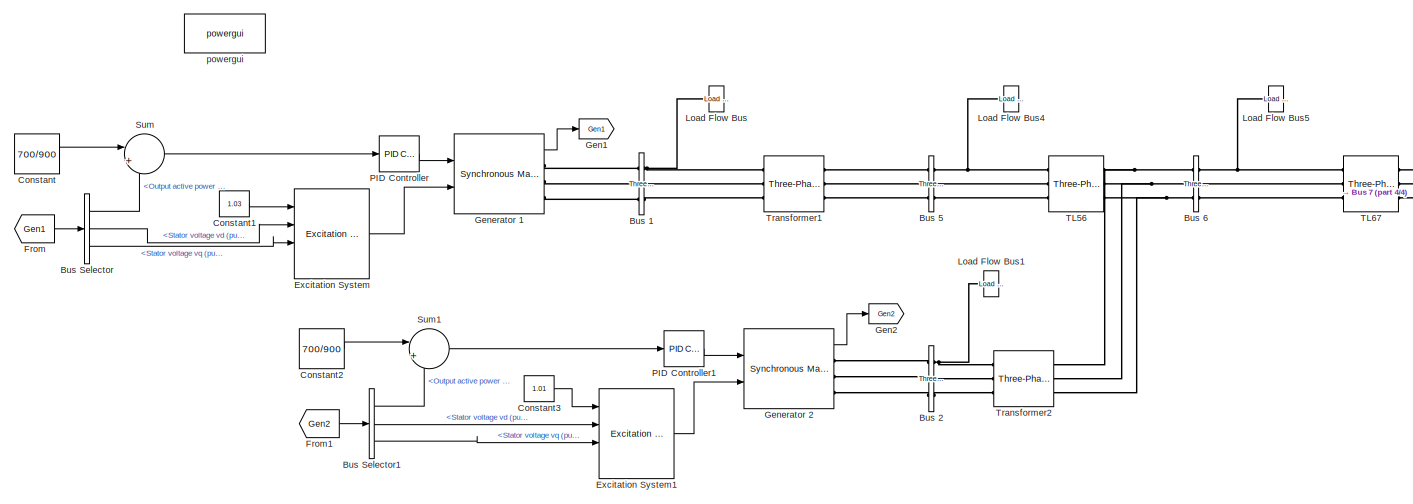
[diagram: root canvas - part 1/4, left side, full height]
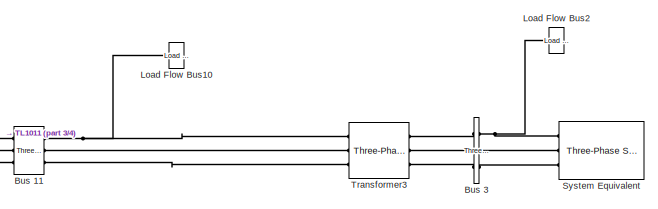
[diagram: root canvas - part 2/4, top right region]
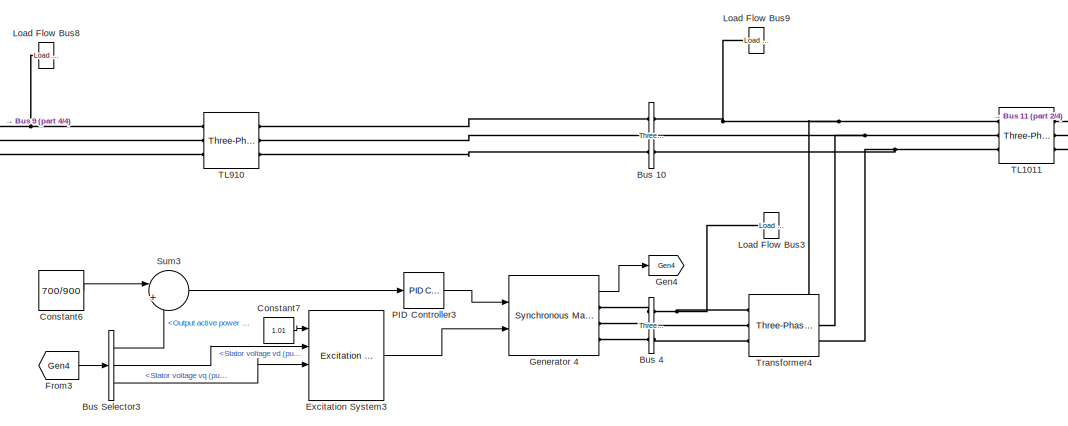
[diagram: root canvas - part 3/4, central region]
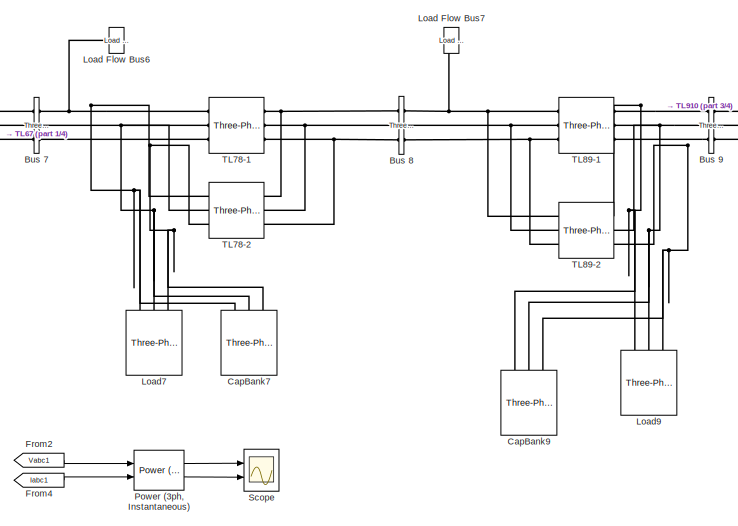
[diagram: root canvas - part 4/4, center side, full height]
MODEL slx_88a00f625fdd
KIND model
CONFIG AbsTol = auto
CONFIG EnableMultiTasking = off
CONFIG FixedStep = auto
CONFIG MaxStep = auto
CONFIG MinStep = auto
CONFIG RelTol = 1e-3
CONFIG SampleTimeConstraint = Unconstrained
CONFIG Solver = VariableStepDiscrete
CONFIG SolverName = VariableStepDiscrete
CONFIG StartTime = 0.0
CONFIG StopTime = 10.0
BLOCK [Reference]  CapBank7  REF=powerlib/Elements/Three-Phase
Parallel RLC Load
  AttributesFormatString = \n
  Ports = [0, 0, 0, 0, 0, 3]
  SourceBlock = powerlib/Elements/Three-Phase\nParallel RLC Load
  SourceProductBaseCode = PS
  SourceProductName = Simscape Power Systems
  SourceType = Three-Phase Parallel RLC Load
BLOCK [Reference]  CapBank9  REF=powerlib/Elements/Three-Phase
Parallel RLC Load
  AttributesFormatString = \n
  Ports = [0, 0, 0, 0, 0, 3]
  SourceBlock = powerlib/Elements/Three-Phase\nParallel RLC Load
  SourceProductBaseCode = PS
  SourceProductName = Simscape Power Systems
  SourceType = Three-Phase Parallel RLC Load
BLOCK [Reference]  Load7  REF=powerlib/Elements/Three-Phase
Parallel RLC Load
  AttributesFormatString = \n
  Ports = [0, 0, 0, 0, 0, 3]
  SourceBlock = powerlib/Elements/Three-Phase\nParallel RLC Load
  SourceProductBaseCode = PS
  SourceProductName = Simscape Power Systems
  SourceType = Three-Phase Parallel RLC Load
BLOCK [Reference]  Load9  REF=powerlib/Elements/Three-Phase
Parallel RLC Load
  AttributesFormatString = \n
  Ports = [0, 0, 0, 0, 0, 3]
  SourceBlock = powerlib/Elements/Three-Phase\nParallel RLC Load
  SourceProductBaseCode = PS
  SourceProductName = Simscape Power Systems
  SourceType = Three-Phase Parallel RLC Load
BLOCK [Reference]  Transformer1   REF=powerlib/Elements/Three-Phase
Transformer
(Two Windings)
  Ports = [0, 0, 0, 0, 0, 3, 3]
  SourceBlock = powerlib/Elements/Three-Phase\nTransformer\n(Two Windings)
  SourceProductBaseCode = PS
  SourceProductName = Simscape Power Systems
  SourceType = Three-Phase Transformer (Two Windings)
BLOCK [Reference]  Transformer2  REF=powerlib/Elements/Three-Phase
Transformer
(Two Windings)
  Ports = [0, 0, 0, 0, 0, 3, 3]
  SourceBlock = powerlib/Elements/Three-Phase\nTransformer\n(Two Windings)
  SourceProductBaseCode = PS
  SourceProductName = Simscape Power Systems
  SourceType = Three-Phase Transformer (Two Windings)
BLOCK [Reference]  Transformer3  REF=powerlib/Elements/Three-Phase
Transformer
(Two Windings)
  Ports = [0, 0, 0, 0, 0, 3, 3]
  SourceBlock = powerlib/Elements/Three-Phase\nTransformer\n(Two Windings)
  SourceProductBaseCode = PS
  SourceProductName = Simscape Power Systems
  SourceType = Three-Phase Transformer (Two Windings)
BLOCK [Reference]  Transformer4  REF=powerlib/Elements/Three-Phase
Transformer
(Two Windings)
  Ports = [0, 0, 0, 0, 0, 3, 3]
  SourceBlock = powerlib/Elements/Three-Phase\nTransformer\n(Two Windings)
  SourceProductBaseCode = PS
  SourceProductName = Simscape Power Systems
  SourceType = Three-Phase Transformer (Two Windings)
BLOCK [Reference] Bus 1  REF=powerlib/Measurements/Three-Phase
V-I Measurement
  Ports = [0, 0, 0, 0, 0, 3, 3]
  SourceBlock = powerlib/Measurements/Three-Phase\nV-I Measurement
  SourceProductBaseCode = PS
  SourceProductName = Simscape Power Systems
  SourceType = Three-Phase VI Measurement
BLOCK [Reference] Bus 10  REF=powerlib/Measurements/Three-Phase
V-I Measurement
  Ports = [0, 0, 0, 0, 0, 3, 3]
  SourceBlock = powerlib/Measurements/Three-Phase\nV-I Measurement
  SourceProductBaseCode = PS
  SourceProductName = Simscape Power Systems
  SourceType = Three-Phase VI Measurement
BLOCK [Reference] Bus 11  REF=powerlib/Measurements/Three-Phase
V-I Measurement
  Ports = [0, 0, 0, 0, 0, 3, 3]
  SourceBlock = powerlib/Measurements/Three-Phase\nV-I Measurement
  SourceProductBaseCode = PS
  SourceProductName = Simscape Power Systems
  SourceType = Three-Phase VI Measurement
BLOCK [Reference] Bus 2  REF=powerlib/Measurements/Three-Phase
V-I Measurement
  Ports = [0, 0, 0, 0, 0, 3, 3]
  SourceBlock = powerlib/Measurements/Three-Phase\nV-I Measurement
  SourceProductBaseCode = PS
  SourceProductName = Simscape Power Systems
  SourceType = Three-Phase VI Measurement
BLOCK [Reference] Bus 3  REF=powerlib/Measurements/Three-Phase
V-I Measurement
  Ports = [0, 0, 0, 0, 0, 3, 3]
  SourceBlock = powerlib/Measurements/Three-Phase\nV-I Measurement
  SourceProductBaseCode = PS
  SourceProductName = Simscape Power Systems
  SourceType = Three-Phase VI Measurement
BLOCK [Reference] Bus 4  REF=powerlib/Measurements/Three-Phase
V-I Measurement
  Ports = [0, 0, 0, 0, 0, 3, 3]
  SourceBlock = powerlib/Measurements/Three-Phase\nV-I Measurement
  SourceProductBaseCode = PS
  SourceProductName = Simscape Power Systems
  SourceType = Three-Phase VI Measurement
BLOCK [Reference] Bus 5  REF=powerlib/Measurements/Three-Phase
V-I Measurement
  Ports = [0, 0, 0, 0, 0, 3, 3]
  SourceBlock = powerlib/Measurements/Three-Phase\nV-I Measurement
  SourceProductBaseCode = PS
  SourceProductName = Simscape Power Systems
  SourceType = Three-Phase VI Measurement
BLOCK [Reference] Bus 6  REF=powerlib/Measurements/Three-Phase
V-I Measurement
  Ports = [0, 0, 0, 0, 0, 3, 3]
  SourceBlock = powerlib/Measurements/Three-Phase\nV-I Measurement
  SourceProductBaseCode = PS
  SourceProductName = Simscape Power Systems
  SourceType = Three-Phase VI Measurement
BLOCK [Reference] Bus 7  REF=powerlib/Measurements/Three-Phase
V-I Measurement
  Ports = [0, 0, 0, 0, 0, 3, 3]
  SourceBlock = powerlib/Measurements/Three-Phase\nV-I Measurement
  SourceProductBaseCode = PS
  SourceProductName = Simscape Power Systems
  SourceType = Three-Phase VI Measurement
BLOCK [Reference] Bus 8  REF=powerlib/Measurements/Three-Phase
V-I Measurement
  Ports = [0, 0, 0, 0, 0, 3, 3]
  SourceBlock = powerlib/Measurements/Three-Phase\nV-I Measurement
  SourceProductBaseCode = PS
  SourceProductName = Simscape Power Systems
  SourceType = Three-Phase VI Measurement
BLOCK [Reference] Bus 9  REF=powerlib/Measurements/Three-Phase
V-I Measurement
  Ports = [0, 0, 0, 0, 0, 3, 3]
  SourceBlock = powerlib/Measurements/Three-Phase\nV-I Measurement
  SourceProductBaseCode = PS
  SourceProductName = Simscape Power Systems
  SourceType = Three-Phase VI Measurement
BLOCK [BusSelector] Bus Selector
  OutputAsBus = off
  OutputSignals = Output active power   Peo (pu),dq0 components.Stator voltage  vd (pu),dq0 components.Stator voltage  vq (pu)
  Ports = [1, 3]
BLOCK [BusSelector] Bus Selector1
  OutputAsBus = off
  OutputSignals = Output active power   Peo (pu),dq0 components.Stator voltage  vd (pu),dq0 components.Stator voltage  vq (pu)
  Ports = [1, 3]
BLOCK [BusSelector] Bus Selector3
  OutputAsBus = off
  OutputSignals = Output active power   Peo (pu),dq0 components.Stator voltage  vd (pu),dq0 components.Stator voltage  vq (pu)
  Ports = [1, 3]
BLOCK [Constant] Constant
  Value = 700/900
BLOCK [Constant] Constant1
  Value = 1.03
BLOCK [Constant] Constant2
  Value = 700/900
BLOCK [Constant] Constant3
  Value = 1.01
BLOCK [Constant] Constant6
  Value = 700/900
BLOCK [Constant] Constant7
  Value = 1.01
BLOCK [Reference] Excitation System  REF=sps_avr/Excitation System
  Ports = [4, 1]
  SourceBlock = sps_avr/Excitation System
  SourceProductBaseCode = PS
  SourceProductName = Simscape Power Systems
  SourceType = Excitation System
BLOCK [Reference] Excitation System1  REF=sps_avr/Excitation System
  Ports = [4, 1]
  SourceBlock = sps_avr/Excitation System
  SourceProductBaseCode = PS
  SourceProductName = Simscape Power Systems
  SourceType = Excitation System
BLOCK [Reference] Excitation System3  REF=sps_avr/Excitation System
  Ports = [4, 1]
  SourceBlock = sps_avr/Excitation System
  SourceProductBaseCode = PS
  SourceProductName = Simscape Power Systems
  SourceType = Excitation System
BLOCK [From] From
  GotoTag = Gen1
BLOCK [From] From1
  GotoTag = Gen2
BLOCK [From] From2
  GotoTag = Vabc1
  TagVisibility = global
BLOCK [From] From3
  GotoTag = Gen4
BLOCK [From] From4
  GotoTag = Iabc1
  TagVisibility = global
BLOCK [Goto] Gen1
  GotoTag = Gen1
BLOCK [Goto] Gen2
  GotoTag = Gen2
BLOCK [Goto] Gen4
  GotoTag = Gen4
BLOCK [Reference] Generator 1   REF=powerlib/Machines/Synchronous Machine
pu Standard
  Ports = [2, 1, 0, 0, 0, 0, 3]
  SourceBlock = powerlib/Machines/Synchronous Machine\npu Standard
  SourceProductBaseCode = PS
  SourceProductName = Simscape Power Systems
  SourceType = Synchronous Machine
BLOCK [Reference] Generator 2   REF=powerlib/Machines/Synchronous Machine
pu Standard
  Ports = [2, 1, 0, 0, 0, 0, 3]
  SourceBlock = powerlib/Machines/Synchronous Machine\npu Standard
  SourceProductBaseCode = PS
  SourceProductName = Simscape Power Systems
  SourceType = Synchronous Machine
BLOCK [Reference] Generator 4  REF=powerlib/Machines/Synchronous Machine
pu Standard
  Ports = [2, 1, 0, 0, 0, 0, 3]
  SourceBlock = powerlib/Machines/Synchronous Machine\npu Standard
  SourceProductBaseCode = PS
  SourceProductName = Simscape Power Systems
  SourceType = Synchronous Machine
BLOCK [Reference] Load Flow Bus  REF=powerlib/Measurements/Load Flow Bus
  AttributesFormatString = %<ID>\n%<Vbase>V\n%<VLF>pu\n%<angleLF>deg.
  Ports = [0, 0, 0, 0, 0, 1]
  SourceBlock = powerlib/Measurements/Load Flow Bus
  SourceProductBaseCode = PS
  SourceProductName = Simscape Power Systems
  SourceType = Load Flow Bus
BLOCK [Reference] Load Flow Bus1  REF=powerlib/Measurements/Load Flow Bus
  AttributesFormatString = %<ID>\n%<Vbase>V\n%<VLF>pu\n%<angleLF>deg.
  Ports = [0, 0, 0, 0, 0, 1]
  SourceBlock = powerlib/Measurements/Load Flow Bus
  SourceProductBaseCode = PS
  SourceProductName = Simscape Power Systems
  SourceType = Load Flow Bus
BLOCK [Reference] Load Flow Bus10  REF=powerlib/Measurements/Load Flow Bus
  AttributesFormatString = %<ID>\n%<Vbase>V\n%<VLF>pu\n%<angleLF>deg.
  Ports = [0, 0, 0, 0, 0, 1]
  SourceBlock = powerlib/Measurements/Load Flow Bus
  SourceProductBaseCode = PS
  SourceProductName = Simscape Power Systems
  SourceType = Load Flow Bus
BLOCK [Reference] Load Flow Bus2  REF=powerlib/Measurements/Load Flow Bus
  AttributesFormatString = %<ID>\n%<Vbase>V\n%<VLF>pu\n%<angleLF>deg.
  Ports = [0, 0, 0, 0, 0, 1]
  SourceBlock = powerlib/Measurements/Load Flow Bus
  SourceProductBaseCode = PS
  SourceProductName = Simscape Power Systems
  SourceType = Load Flow Bus
BLOCK [Reference] Load Flow Bus3  REF=powerlib/Measurements/Load Flow Bus
  AttributesFormatString = %<ID>\n%<Vbase>V\n%<VLF>pu\n%<angleLF>deg.
  Ports = [0, 0, 0, 0, 0, 1]
  SourceBlock = powerlib/Measurements/Load Flow Bus
  SourceProductBaseCode = PS
  SourceProductName = Simscape Power Systems
  SourceType = Load Flow Bus
BLOCK [Reference] Load Flow Bus4  REF=powerlib/Measurements/Load Flow Bus
  AttributesFormatString = %<ID>\n%<Vbase>V\n%<VLF>pu\n%<angleLF>deg.
  Ports = [0, 0, 0, 0, 0, 1]
  SourceBlock = powerlib/Measurements/Load Flow Bus
  SourceProductBaseCode = PS
  SourceProductName = Simscape Power Systems
  SourceType = Load Flow Bus
BLOCK [Reference] Load Flow Bus5  REF=powerlib/Measurements/Load Flow Bus
  AttributesFormatString = %<ID>\n%<Vbase>V\n%<VLF>pu\n%<angleLF>deg.
  Ports = [0, 0, 0, 0, 0, 1]
  SourceBlock = powerlib/Measurements/Load Flow Bus
  SourceProductBaseCode = PS
  SourceProductName = Simscape Power Systems
  SourceType = Load Flow Bus
BLOCK [Reference] Load Flow Bus6  REF=powerlib/Measurements/Load Flow Bus
  AttributesFormatString = %<ID>\n%<Vbase>V\n%<VLF>pu\n%<angleLF>deg.
  Ports = [0, 0, 0, 0, 0, 1]
  SourceBlock = powerlib/Measurements/Load Flow Bus
  SourceProductBaseCode = PS
  SourceProductName = Simscape Power Systems
  SourceType = Load Flow Bus
BLOCK [Reference] Load Flow Bus7  REF=powerlib/Measurements/Load Flow Bus
  AttributesFormatString = %<ID>\n%<Vbase>V\n%<VLF>pu\n%<angleLF>deg.
  Ports = [0, 0, 0, 0, 0, 1]
  SourceBlock = powerlib/Measurements/Load Flow Bus
  SourceProductBaseCode = PS
  SourceProductName = Simscape Power Systems
  SourceType = Load Flow Bus
BLOCK [Reference] Load Flow Bus8  REF=powerlib/Measurements/Load Flow Bus
  AttributesFormatString = %<ID>\n%<Vbase>V\n%<VLF>pu\n%<angleLF>deg.
  Ports = [0, 0, 0, 0, 0, 1]
  SourceBlock = powerlib/Measurements/Load Flow Bus
  SourceProductBaseCode = PS
  SourceProductName = Simscape Power Systems
  SourceType = Load Flow Bus
BLOCK [Reference] Load Flow Bus9  REF=powerlib/Measurements/Load Flow Bus
  AttributesFormatString = %<ID>\n%<Vbase>V\n%<VLF>pu\n%<angleLF>deg.
  Ports = [0, 0, 0, 0, 0, 1]
  SourceBlock = powerlib/Measurements/Load Flow Bus
  SourceProductBaseCode = PS
  SourceProductName = Simscape Power Systems
  SourceType = Load Flow Bus
BLOCK [Reference] PID Controller  REF=simulink/Continuous/PID Controller
  Ports = [1, 1]
  SourceBlock = simulink/Continuous/PID Controller
  SourceProductBaseCode = SL
  SourceProductName = Simulink
  SourceType = PID 1dof
BLOCK [Reference] PID Controller1  REF=simulink/Continuous/PID Controller
  Ports = [1, 1]
  SourceBlock = simulink/Continuous/PID Controller
  SourceProductBaseCode = SL
  SourceProductName = Simulink
  SourceType = PID 1dof
BLOCK [Reference] PID Controller3  REF=simulink/Continuous/PID Controller
  Ports = [1, 1]
  SourceBlock = simulink/Continuous/PID Controller
  SourceProductBaseCode = SL
  SourceProductName = Simulink
  SourceType = PID 1dof
BLOCK [Reference] Power (3ph, Instantaneous)  REF=powerlib_meascontrol/Measurements/Power
(3ph, Instantaneous)
  Ports = [2, 2]
  SourceBlock = powerlib_meascontrol/Measurements/Power\n(3ph, Instantaneous)
  SourceProductBaseCode = PS
  SourceProductName = Simscape Power Systems
  SourceType = Power (3ph, Instantaneous)
BLOCK [Scope] Scope
  Floating = off
  NumInputPorts = 2
  Ports = [2]
  ScopeSpecificationString = Simulink.scopes.TimeScopeBlockCfg('CurrentConfiguration', extmgr.ConfigurationSet(extmgr.Configuration('Core','General UI',true),extmgr.Configuration('Core','Source UI',true),extmgr.Configuration('Sources','WiredSimulink',true),extmgr.Configuration('Visuals','Time Domain',true,'SerializedDisplays',{struct('MinYLimReal','-10','MaxYLimReal','10','YLabelReal','','MinYLimMag','0','MaxYLimMag','10','Le...<+1625ch>
BLOCK [Sum] Sum
  IconShape = round
  InputSameDT = off
  Inputs = |+-
  OutDataTypeStr = Inherit: Inherit via internal rule
  Ports = [2, 1]
  SaturateOnIntegerOverflow = off
BLOCK [Sum] Sum1
  IconShape = round
  InputSameDT = off
  Inputs = |+-
  OutDataTypeStr = Inherit: Inherit via internal rule
  Ports = [2, 1]
  SaturateOnIntegerOverflow = off
BLOCK [Sum] Sum3
  IconShape = round
  InputSameDT = off
  Inputs = |+-
  OutDataTypeStr = Inherit: Inherit via internal rule
  Ports = [2, 1]
  SaturateOnIntegerOverflow = off
BLOCK [Reference] System Equivalent  REF=powerlib/Electrical
Sources/Three-Phase Source
  Ports = [0, 0, 0, 0, 0, 0, 3]
  SourceBlock = powerlib/Electrical\nSources/Three-Phase Source
  SourceProductBaseCode = PS
  SourceProductName = Simscape Power Systems
  SourceType = Three-Phase Source
BLOCK [Reference] TL1011  REF=powerlib/Elements/Three-Phase
Series RLC Branch
  AttributesFormatString = \n
  Ports = [0, 0, 0, 0, 0, 3, 3]
  SourceBlock = powerlib/Elements/Three-Phase\nSeries RLC Branch
  SourceProductBaseCode = PS
  SourceProductName = Simscape Power Systems
  SourceType = Three-Phase Series RLC Branch
BLOCK [Reference] TL56   REF=powerlib/Elements/Three-Phase
Series RLC Branch
  AttributesFormatString = \n
  Ports = [0, 0, 0, 0, 0, 3, 3]
  SourceBlock = powerlib/Elements/Three-Phase\nSeries RLC Branch
  SourceProductBaseCode = PS
  SourceProductName = Simscape Power Systems
  SourceType = Three-Phase Series RLC Branch
BLOCK [Reference] TL67  REF=powerlib/Elements/Three-Phase
Series RLC Branch
  AttributesFormatString = \n
  Ports = [0, 0, 0, 0, 0, 3, 3]
  SourceBlock = powerlib/Elements/Three-Phase\nSeries RLC Branch
  SourceProductBaseCode = PS
  SourceProductName = Simscape Power Systems
  SourceType = Three-Phase Series RLC Branch
BLOCK [Reference] TL78-1  REF=powerlib/Elements/Three-Phase
Series RLC Branch
  AttributesFormatString = \n
  Ports = [0, 0, 0, 0, 0, 3, 3]
  SourceBlock = powerlib/Elements/Three-Phase\nSeries RLC Branch
  SourceProductBaseCode = PS
  SourceProductName = Simscape Power Systems
  SourceType = Three-Phase Series RLC Branch
BLOCK [Reference] TL78-2  REF=powerlib/Elements/Three-Phase
Series RLC Branch
  AttributesFormatString = \n
  Ports = [0, 0, 0, 0, 0, 3, 3]
  SourceBlock = powerlib/Elements/Three-Phase\nSeries RLC Branch
  SourceProductBaseCode = PS
  SourceProductName = Simscape Power Systems
  SourceType = Three-Phase Series RLC Branch
BLOCK [Reference] TL89-1  REF=powerlib/Elements/Three-Phase
Series RLC Branch
  AttributesFormatString = \n
  Ports = [0, 0, 0, 0, 0, 3, 3]
  SourceBlock = powerlib/Elements/Three-Phase\nSeries RLC Branch
  SourceProductBaseCode = PS
  SourceProductName = Simscape Power Systems
  SourceType = Three-Phase Series RLC Branch
BLOCK [Reference] TL89-2  REF=powerlib/Elements/Three-Phase
Series RLC Branch
  AttributesFormatString = \n
  Ports = [0, 0, 0, 0, 0, 3, 3]
  SourceBlock = powerlib/Elements/Three-Phase\nSeries RLC Branch
  SourceProductBaseCode = PS
  SourceProductName = Simscape Power Systems
  SourceType = Three-Phase Series RLC Branch
BLOCK [Reference] TL910  REF=powerlib/Elements/Three-Phase
Series RLC Branch
  AttributesFormatString = \n
  Ports = [0, 0, 0, 0, 0, 3, 3]
  SourceBlock = powerlib/Elements/Three-Phase\nSeries RLC Branch
  SourceProductBaseCode = PS
  SourceProductName = Simscape Power Systems
  SourceType = Three-Phase Series RLC Branch
BLOCK [Reference] powergui  REF=powerlib/powergui
  Ports = []
  Priority = 1
  SourceBlock = powerlib/powergui
  SourceProductBaseCode = PS
  SourceProductName = Simscape Power Systems
  SourceType = PSB option menu block
LINE Bus Selector1:1 -> Sum1:2
LINE Bus Selector1:2 -> Excitation System1:2
LINE Bus Selector1:3 -> Excitation System1:3
LINE Bus Selector3:1 -> Sum3:2
LINE Bus Selector3:2 -> Excitation System3:2
LINE Bus Selector3:3 -> Excitation System3:3
LINE Bus Selector:1 -> Sum:2
LINE Bus Selector:2 -> Excitation System:2
LINE Bus Selector:3 -> Excitation System:3
LINE Constant1:1 -> Excitation System:1
LINE Constant2:1 -> Sum1:1
LINE Constant3:1 -> Excitation System1:1
LINE Constant6:1 -> Sum3:1
LINE Constant7:1 -> Excitation System3:1
LINE Constant:1 -> Sum:1
LINE Excitation System1:1 -> Generator 2 :2
LINE Excitation System3:1 -> Generator 4:2
LINE Excitation System:1 -> Generator 1 :2
LINE From1:1 -> Bus Selector1:1
LINE From2:1 -> Power (3ph, Instantaneous):1
LINE From3:1 -> Bus Selector3:1
LINE From4:1 -> Power (3ph, Instantaneous):2
LINE From:1 -> Bus Selector:1
LINE Generator 1 :1 -> Gen1:1
LINE Generator 2 :1 -> Gen2:1
LINE Generator 4:1 -> Gen4:1
LINE PID Controller1:1 -> Generator 2 :1
LINE PID Controller3:1 -> Generator 4:1
LINE PID Controller:1 -> Generator 1 :1
LINE Power (3ph, Instantaneous):1 -> Scope:1
LINE Power (3ph, Instantaneous):2 -> Scope:2
LINE Sum1:1 -> PID Controller1:1
LINE Sum3:1 -> PID Controller3:1
LINE Sum:1 -> PID Controller:1
PNET net1:  CapBank7:LConn1 --  Load7:LConn1 -- Bus 7:RConn1 -- Load Flow Bus6:LConn1 -- TL78-1:LConn1 -- TL78-2:LConn1
PNET net2:  CapBank7:LConn2 --  Load7:LConn2 -- Bus 7:RConn2 -- TL78-1:LConn2 -- TL78-2:LConn2
PNET net3:  CapBank7:LConn3 --  Load7:LConn3 -- Bus 7:RConn3 -- TL78-1:LConn3 -- TL78-2:LConn3
PNET net4:  CapBank9:LConn1 --  Load9:LConn1 -- Bus 9:LConn1 -- TL89-1:RConn1 -- TL89-2:RConn1
PNET net5:  CapBank9:LConn2 --  Load9:LConn2 -- Bus 9:LConn2 -- TL89-1:RConn2 -- TL89-2:RConn2
PNET net6:  CapBank9:LConn3 --  Load9:LConn3 -- Bus 9:LConn3 -- TL89-1:RConn3 -- TL89-2:RConn3
PNET net7:  Transformer1 :LConn1 -- Bus 1:RConn1 -- Load Flow Bus:LConn1
PLINE  Transformer1 :LConn2 -- Bus 1:RConn2
PLINE  Transformer1 :LConn3 -- Bus 1:RConn3
PLINE  Transformer1 :RConn1 -- Bus 5:LConn1
PLINE  Transformer1 :RConn2 -- Bus 5:LConn2
PLINE  Transformer1 :RConn3 -- Bus 5:LConn3
PNET net8:  Transformer2:LConn1 -- Bus 2:RConn1 -- Load Flow Bus1:LConn1
PLINE  Transformer2:LConn2 -- Bus 2:RConn2
PLINE  Transformer2:LConn3 -- Bus 2:RConn3
PNET net9:  Transformer2:RConn1 -- Bus 6:LConn1 -- TL56 :RConn1
PNET net10:  Transformer2:RConn2 -- Bus 6:LConn2 -- TL56 :RConn2
PNET net11:  Transformer2:RConn3 -- Bus 6:LConn3 -- TL56 :RConn3
PLINE  Transformer3:LConn1 -- Bus 3:LConn1
PLINE  Transformer3:LConn2 -- Bus 3:LConn2
PLINE  Transformer3:LConn3 -- Bus 3:LConn3
PNET net12:  Transformer3:RConn1 -- Bus 11:RConn1 -- Load Flow Bus10:LConn1
PLINE  Transformer3:RConn2 -- Bus 11:RConn2
PLINE  Transformer3:RConn3 -- Bus 11:RConn3
PNET net13:  Transformer4:LConn1 -- Bus 4:RConn1 -- Load Flow Bus3:LConn1
PLINE  Transformer4:LConn2 -- Bus 4:RConn2
PLINE  Transformer4:LConn3 -- Bus 4:RConn3
PNET net14:  Transformer4:RConn1 -- Bus 10:RConn1 -- Load Flow Bus9:LConn1 -- TL1011:LConn1
PNET net15:  Transformer4:RConn2 -- Bus 10:RConn2 -- TL1011:LConn2
PNET net16:  Transformer4:RConn3 -- Bus 10:RConn3 -- TL1011:LConn3
PLINE Bus 10:LConn1 -- TL910:RConn1
PLINE Bus 10:LConn2 -- TL910:RConn2
PLINE Bus 10:LConn3 -- TL910:RConn3
PLINE Bus 11:LConn1 -- TL1011:RConn1
PLINE Bus 11:LConn2 -- TL1011:RConn2
PLINE Bus 11:LConn3 -- TL1011:RConn3
PLINE Bus 1:LConn1 -- Generator 1 :RConn1
PLINE Bus 1:LConn2 -- Generator 1 :RConn2
PLINE Bus 1:LConn3 -- Generator 1 :RConn3
PLINE Bus 2:LConn1 -- Generator 2 :RConn1
PLINE Bus 2:LConn2 -- Generator 2 :RConn2
PLINE Bus 2:LConn3 -- Generator 2 :RConn3
PNET net17: Bus 3:RConn1 -- Load Flow Bus2:LConn1 -- System Equivalent:RConn1
PLINE Bus 3:RConn2 -- System Equivalent:RConn2
PLINE Bus 3:RConn3 -- System Equivalent:RConn3
PLINE Bus 4:LConn1 -- Generator 4:RConn1
PLINE Bus 4:LConn2 -- Generator 4:RConn2
PLINE Bus 4:LConn3 -- Generator 4:RConn3
PNET net18: Bus 5:RConn1 -- Load Flow Bus4:LConn1 -- TL56 :LConn1
PLINE Bus 5:RConn2 -- TL56 :LConn2
PLINE Bus 5:RConn3 -- TL56 :LConn3
PNET net19: Bus 6:RConn1 -- Load Flow Bus5:LConn1 -- TL67:LConn1
PLINE Bus 6:RConn2 -- TL67:LConn2
PLINE Bus 6:RConn3 -- TL67:LConn3
PLINE Bus 7:LConn1 -- TL67:RConn1
PLINE Bus 7:LConn2 -- TL67:RConn2
PLINE Bus 7:LConn3 -- TL67:RConn3
PNET net20: Bus 8:LConn1 -- TL78-1:RConn1 -- TL78-2:RConn1
PNET net21: Bus 8:LConn2 -- TL78-1:RConn2 -- TL78-2:RConn2
PNET net22: Bus 8:LConn3 -- TL78-1:RConn3 -- TL78-2:RConn3
PNET net23: Bus 8:RConn1 -- Load Flow Bus7:LConn1 -- TL89-1:LConn1 -- TL89-2:LConn1
PNET net24: Bus 8:RConn2 -- TL89-1:LConn2 -- TL89-2:LConn2
PNET net25: Bus 8:RConn3 -- TL89-1:LConn3 -- TL89-2:LConn3
PNET net26: Bus 9:RConn1 -- Load Flow Bus8:LConn1 -- TL910:LConn1
PLINE Bus 9:RConn2 -- TL910:LConn2
PLINE Bus 9:RConn3 -- TL910:LConn3
note: PNET lines group multi-terminal physical nets as a canonical sorted terminal list (undirected conserving connections); 2-terminal nets keep the pairwise PLINE form
